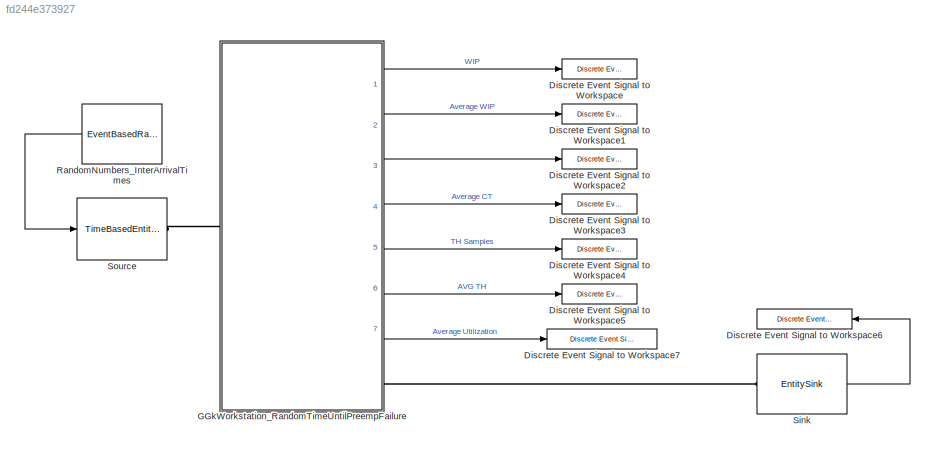
MODEL slx_fd244e373927
KIND model
CONFIG AbsTol = auto
CONFIG FixedStep = auto
CONFIG InitFcn = se_randomizeseeds(gcs, 'Mode', 'All')
CONFIG MaxStep = auto
CONFIG MinStep = auto
CONFIG RelTol = 1e-3
CONFIG SampleTimeConstraint = Unconstrained
CONFIG Solver = ode45
CONFIG SolverMode = Auto
CONFIG SolverName = ode45
CONFIG StartTime = 0.0
CONFIG StopTime = 100000
BLOCK [Reference] Discrete Event Signal to Workspace  REF=simeventslib/SimEvents
Sinks/Discrete Event Signal
to Workspace
  Decimation = 1
  MaxDataPoints = inf
  Ports = [1]
  SaveFormat = Structure With Time
  SourceBlock = simeventslib/SimEvents\nSinks/Discrete Event Signal\nto Workspace
  SourceType = Discrete Event Signal to Workspace
  VariableName = WIP_samples
  isMonitorOnly = off
  isRecordIC = off
BLOCK [Reference] Discrete Event Signal to Workspace1  REF=simeventslib/SimEvents
Sinks/Discrete Event Signal
to Workspace
  Decimation = 1
  MaxDataPoints = inf
  Ports = [1]
  SaveFormat = Structure With Time
  SourceBlock = simeventslib/SimEvents\nSinks/Discrete Event Signal\nto Workspace
  SourceType = Discrete Event Signal to Workspace
  VariableName = WIP_average
  isMonitorOnly = off
  isRecordIC = off
BLOCK [Reference] Discrete Event Signal to Workspace2  REF=simeventslib/SimEvents
Sinks/Discrete Event Signal
to Workspace
  Decimation = 1
  MaxDataPoints = inf
  Ports = [1]
  SaveFormat = Structure With Time
  SourceBlock = simeventslib/SimEvents\nSinks/Discrete Event Signal\nto Workspace
  SourceType = Discrete Event Signal to Workspace
  VariableName = CT_samples
  isMonitorOnly = off
  isRecordIC = off
BLOCK [Reference] Discrete Event Signal to Workspace3  REF=simeventslib/SimEvents
Sinks/Discrete Event Signal
to Workspace
  Decimation = 1
  MaxDataPoints = inf
  Ports = [1]
  SaveFormat = Structure With Time
  SourceBlock = simeventslib/SimEvents\nSinks/Discrete Event Signal\nto Workspace
  SourceType = Discrete Event Signal to Workspace
  VariableName = CT_average
  isMonitorOnly = off
  isRecordIC = off
BLOCK [Reference] Discrete Event Signal to Workspace4  REF=simeventslib/SimEvents
Sinks/Discrete Event Signal
to Workspace
  Decimation = 1
  MaxDataPoints = inf
  Ports = [1]
  SaveFormat = Structure With Time
  SourceBlock = simeventslib/SimEvents\nSinks/Discrete Event Signal\nto Workspace
  SourceType = Discrete Event Signal to Workspace
  VariableName = TH_samples
  isMonitorOnly = off
  isRecordIC = off
BLOCK [Reference] Discrete Event Signal to Workspace5  REF=simeventslib/SimEvents
Sinks/Discrete Event Signal
to Workspace
  Decimation = 1
  MaxDataPoints = inf
  Ports = [1]
  SaveFormat = Structure With Time
  SourceBlock = simeventslib/SimEvents\nSinks/Discrete Event Signal\nto Workspace
  SourceType = Discrete Event Signal to Workspace
  VariableName = TH_average
  isMonitorOnly = off
  isRecordIC = off
BLOCK [Reference] Discrete Event Signal to Workspace6  REF=simeventslib/SimEvents
Sinks/Discrete Event Signal
to Workspace
  Decimation = 1
  MaxDataPoints = inf
  Ports = [1]
  SaveFormat = Structure With Time
  SourceBlock = simeventslib/SimEvents\nSinks/Discrete Event Signal\nto Workspace
  SourceType = Discrete Event Signal to Workspace
  VariableName = nDepartures
  isMonitorOnly = off
  isRecordIC = off
BLOCK [Reference] Discrete Event Signal to Workspace7  REF=simeventslib/SimEvents
Sinks/Discrete Event Signal
to Workspace
  Decimation = 1
  MaxDataPoints = inf
  Ports = [1]
  SaveFormat = Structure With Time
  SourceBlock = simeventslib/SimEvents\nSinks/Discrete Event Signal\nto Workspace
  SourceType = Discrete Event Signal to Workspace
  VariableName = uServers_average
  isMonitorOnly = off
  isRecordIC = off
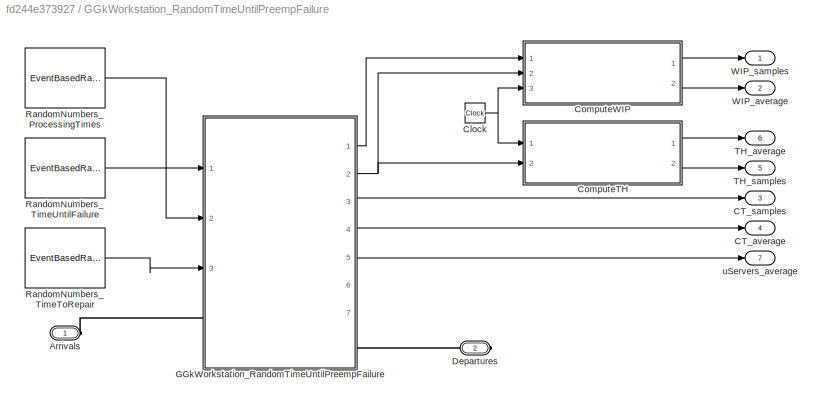
BLOCK [SubSystem] GGkWorkstation_RandomTimeUntilPreempFailure
  CopyFcn = set_param(gcb, 'LinkStatus', 'none');
  InitFcn = se_randomizeseeds(gcs, 'Mode', 'All')
  Ports = [0, 7, 0, 0, 0, 1, 1]
  RequestExecContextInheritance = off
BLOCK [PMIOPort] GGkWorkstation_RandomTimeUntilPreempFailure/Arrivals
  Port = 1
  Side = Left
BLOCK [Outport] GGkWorkstation_RandomTimeUntilPreempFailure/CT_average
  IconDisplay = Port number
  Port = 4
BLOCK [Outport] GGkWorkstation_RandomTimeUntilPreempFailure/CT_samples
  IconDisplay = Port number
  Port = 3
BLOCK [Clock] GGkWorkstation_RandomTimeUntilPreempFailure/Clock
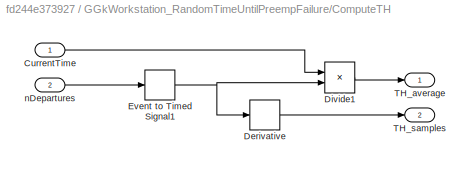
BLOCK [SubSystem] GGkWorkstation_RandomTimeUntilPreempFailure/ComputeTH
  Ports = [2, 2]
  RequestExecContextInheritance = off
BLOCK [Inport] GGkWorkstation_RandomTimeUntilPreempFailure/ComputeTH/CurrentTime
  IconDisplay = Port number
BLOCK [Derivative] GGkWorkstation_RandomTimeUntilPreempFailure/ComputeTH/Derivative
BLOCK [Product] GGkWorkstation_RandomTimeUntilPreempFailure/ComputeTH/Divide1
  InputSameDT = off
  Inputs = /*
  OutDataTypeStr = Inherit: Inherit via internal rule
  Ports = [2, 1]
  RndMeth = Floor
  SaturateOnIntegerOverflow = off
BLOCK [EventToTimedSignal] GGkWorkstation_RandomTimeUntilPreempFailure/ComputeTH/Event to Timed Signal1
  InputPortMap = u0
  OutputPortMap = o0
  Ports = [1, 1]
BLOCK [Outport] GGkWorkstation_RandomTimeUntilPreempFailure/ComputeTH/TH_average
  IconDisplay = Port number
BLOCK [Outport] GGkWorkstation_RandomTimeUntilPreempFailure/ComputeTH/TH_samples
  IconDisplay = Port number
  Port = 2
BLOCK [Inport] GGkWorkstation_RandomTimeUntilPreempFailure/ComputeTH/nDepartures
  IconDisplay = Port number
  Port = 2
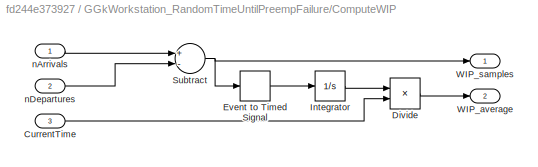
BLOCK [SubSystem] GGkWorkstation_RandomTimeUntilPreempFailure/ComputeWIP
  Ports = [3, 2]
  RequestExecContextInheritance = off
BLOCK [Inport] GGkWorkstation_RandomTimeUntilPreempFailure/ComputeWIP/CurrentTime
  IconDisplay = Port number
  Port = 3
BLOCK [Product] GGkWorkstation_RandomTimeUntilPreempFailure/ComputeWIP/Divide
  InputSameDT = off
  Inputs = */
  OutDataTypeStr = Inherit: Inherit via internal rule
  Ports = [2, 1]
  RndMeth = Floor
  SaturateOnIntegerOverflow = off
BLOCK [EventToTimedSignal] GGkWorkstation_RandomTimeUntilPreempFailure/ComputeWIP/Event to Timed Signal
  InputPortMap = u0
  OutputPortMap = o0
  Ports = [1, 1]
BLOCK [Integrator] GGkWorkstation_RandomTimeUntilPreempFailure/ComputeWIP/Integrator
  Ports = [1, 1]
BLOCK [Sum] GGkWorkstation_RandomTimeUntilPreempFailure/ComputeWIP/Subtract
  InputSameDT = off
  Inputs = +-
  OutDataTypeStr = Inherit: Inherit via internal rule
  Ports = [2, 1]
  SaturateOnIntegerOverflow = off
BLOCK [Outport] GGkWorkstation_RandomTimeUntilPreempFailure/ComputeWIP/WIP_average
  IconDisplay = Port number
  Port = 2
BLOCK [Outport] GGkWorkstation_RandomTimeUntilPreempFailure/ComputeWIP/WIP_samples
  IconDisplay = Port number
BLOCK [Inport] GGkWorkstation_RandomTimeUntilPreempFailure/ComputeWIP/nArrivals
  IconDisplay = Port number
BLOCK [Inport] GGkWorkstation_RandomTimeUntilPreempFailure/ComputeWIP/nDepartures
  IconDisplay = Port number
  Port = 2
BLOCK [PMIOPort] GGkWorkstation_RandomTimeUntilPreempFailure/Departures
  Port = 2
  Side = Right
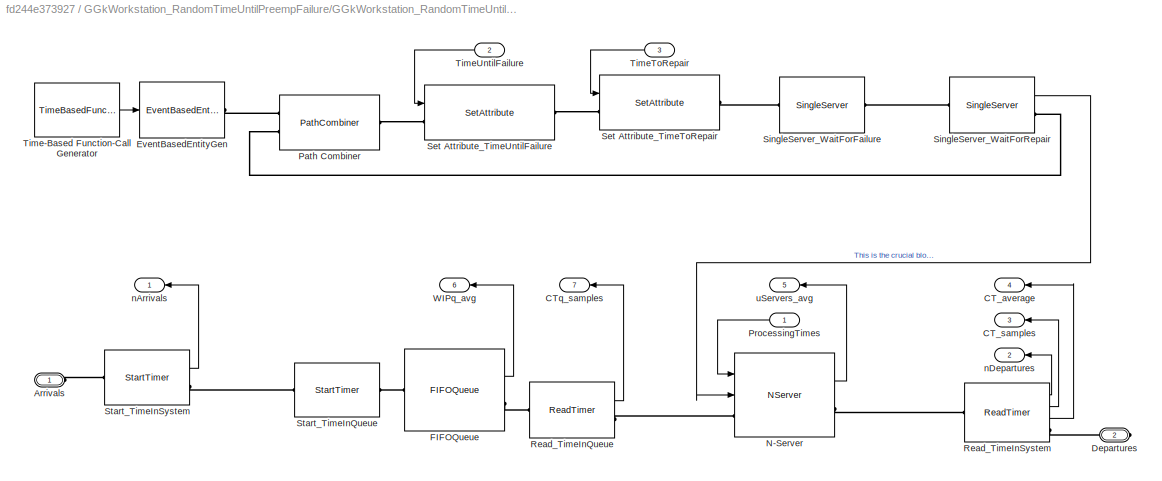
BLOCK [SubSystem] GGkWorkstation_RandomTimeUntilPreempFailure/GGkWorkstation_RandomTimeUntilPreempFailure
  Ports = [3, 7, 0, 0, 0, 1, 1]
  RequestExecContextInheritance = off
BLOCK [PMIOPort] GGkWorkstation_RandomTimeUntilPreempFailure/GGkWorkstation_RandomTimeUntilPreempFailure/Arrivals
  Port = 1
  Side = Left
BLOCK [Outport] GGkWorkstation_RandomTimeUntilPreempFailure/GGkWorkstation_RandomTimeUntilPreempFailure/CT_average
  IconDisplay = Port number
  Port = 4
BLOCK [Outport] GGkWorkstation_RandomTimeUntilPreempFailure/GGkWorkstation_RandomTimeUntilPreempFailure/CT_samples
  IconDisplay = Port number
  Port = 3
BLOCK [Outport] GGkWorkstation_RandomTimeUntilPreempFailure/GGkWorkstation_RandomTimeUntilPreempFailure/CTq_samples
  IconDisplay = Port number
  Port = 7
BLOCK [PMIOPort] GGkWorkstation_RandomTimeUntilPreempFailure/GGkWorkstation_RandomTimeUntilPreempFailure/Departures
  Port = 2
  Side = Right
BLOCK [EventBasedEntityGenerator] GGkWorkstation_RandomTimeUntilPreempFailure/GGkWorkstation_RandomTimeUntilPreempFailure/EventBasedEntityGen
  GenerateEntitiesUpon = Function call from port fcn
  InputPortMap = u0
  Ports = [1, 0, 0, 0, 0, 0, 1]
BLOCK [FIFOQueue] GGkWorkstation_RandomTimeUntilPreempFailure/GGkWorkstation_RandomTimeUntilPreempFailure/FIFOQueue
  Capacity = Inf
  OutputPortMap = o3
  Ports = [0, 1, 0, 0, 0, 1, 1]
  StatAverageQueueLength = on
BLOCK [NServer] GGkWorkstation_RandomTimeUntilPreempFailure/GGkWorkstation_RandomTimeUntilPreempFailure/N-Server
  AllowServiceControl = on
  BlockWhileSignalOn = on
  InputPortMap = u0,u1
  NumberOfServers = NumberOfServers
  OutputPortMap = o5
  Ports = [2, 1, 0, 0, 0, 1, 1]
  ServiceTimeFrom = Signal port t
  StatUtilization = on
BLOCK [PathCombiner] GGkWorkstation_RandomTimeUntilPreempFailure/GGkWorkstation_RandomTimeUntilPreempFailure/Path Combiner
  NumberInputPorts = 2
  Ports = [0, 0, 0, 0, 0, 2, 1]
BLOCK [Inport] GGkWorkstation_RandomTimeUntilPreempFailure/GGkWorkstation_RandomTimeUntilPreempFailure/ProcessingTimes
  IconDisplay = Port number
BLOCK [ReadTimer] GGkWorkstation_RandomTimeUntilPreempFailure/GGkWorkstation_RandomTimeUntilPreempFailure/Read_TimeInQueue
  OutputPortMap = o2
  Ports = [0, 1, 0, 0, 0, 1, 1]
  StatTimeElapsed = on
  TimerTag = TimeInQueue
BLOCK [ReadTimer] GGkWorkstation_RandomTimeUntilPreempFailure/GGkWorkstation_RandomTimeUntilPreempFailure/Read_TimeInSystem
  OutputPortMap = o0,o2,o3
  Ports = [0, 3, 0, 0, 0, 1, 1]
  StatAverageTimeElapsed = on
  StatNumberDeparted = on
  StatTimeElapsed = on
  TimerTag = TimeInSystem
BLOCK [SetAttribute] GGkWorkstation_RandomTimeUntilPreempFailure/GGkWorkstation_RandomTimeUntilPreempFailure/Set Attribute_TimeToRepair
  AttributeFrom = Signal port
  AttributeName = TimeToRepair
  EvaluatedAttributeValue = { []}
  InputPortMap = u0
  Ports = [1, 0, 0, 0, 0, 1, 1]
BLOCK [SetAttribute] GGkWorkstation_RandomTimeUntilPreempFailure/GGkWorkstation_RandomTimeUntilPreempFailure/Set Attribute_TimeUntilFailure
  AttributeFrom = Signal port
  AttributeName = TimeUntilFailure
  EvaluatedAttributeValue = { []}
  InputPortMap = u0
  Ports = [1, 0, 0, 0, 0, 1, 1]
BLOCK [SingleServer] GGkWorkstation_RandomTimeUntilPreempFailure/GGkWorkstation_RandomTimeUntilPreempFailure/SingleServer_WaitForFailure
  AttributeName = TimeUntilFailure
  Ports = [0, 0, 0, 0, 0, 1, 1]
  ServiceTimeFrom = Attribute
BLOCK [SingleServer] GGkWorkstation_RandomTimeUntilPreempFailure/GGkWorkstation_RandomTimeUntilPreempFailure/SingleServer_WaitForRepair
  AttributeName = TimeToRepair
  OutputPortMap = o1
  Ports = [0, 1, 0, 0, 0, 1, 1]
  ServiceTimeFrom = Attribute
  StatNumberInBlock = on
BLOCK [StartTimer] GGkWorkstation_RandomTimeUntilPreempFailure/GGkWorkstation_RandomTimeUntilPreempFailure/Start_TimeInQueue
  Ports = [0, 0, 0, 0, 0, 1, 1]
  TimerStartedOption = Restart
  TimerTag = TimeInQueue
BLOCK [StartTimer] GGkWorkstation_RandomTimeUntilPreempFailure/GGkWorkstation_RandomTimeUntilPreempFailure/Start_TimeInSystem
  OutputPortMap = o0
  Ports = [0, 1, 0, 0, 0, 1, 1]
  StatNumberDeparted = on
  TimerStartedOption = Restart
  TimerTag = TimeInSystem
BLOCK [TimeBasedFunctionCallGenerator] GGkWorkstation_RandomTimeUntilPreempFailure/GGkWorkstation_RandomTimeUntilPreempFailure/Time-Based Function-Call Generator
  EventGenerationMode = Only at simulation start
  OutputPortMap = o0
  Ports = [0, 1]
BLOCK [Inport] GGkWorkstation_RandomTimeUntilPreempFailure/GGkWorkstation_RandomTimeUntilPreempFailure/TimeToRepair
  IconDisplay = Port number
  Port = 3
BLOCK [Inport] GGkWorkstation_RandomTimeUntilPreempFailure/GGkWorkstation_RandomTimeUntilPreempFailure/TimeUntilFailure
  IconDisplay = Port number
  Port = 2
BLOCK [Outport] GGkWorkstation_RandomTimeUntilPreempFailure/GGkWorkstation_RandomTimeUntilPreempFailure/WIPq_avg
  IconDisplay = Port number
  Port = 6
BLOCK [Outport] GGkWorkstation_RandomTimeUntilPreempFailure/GGkWorkstation_RandomTimeUntilPreempFailure/nArrivals
  IconDisplay = Port number
BLOCK [Outport] GGkWorkstation_RandomTimeUntilPreempFailure/GGkWorkstation_RandomTimeUntilPreempFailure/nDepartures
  IconDisplay = Port number
  Port = 2
BLOCK [Outport] GGkWorkstation_RandomTimeUntilPreempFailure/GGkWorkstation_RandomTimeUntilPreempFailure/uServers_avg
  IconDisplay = Port number
  Port = 5
BLOCK [EventBasedRandomNumber] GGkWorkstation_RandomTimeUntilPreempFailure/RandomNumbers_ProcessingTimes
  Distribution = Triangular
  OutputPortMap = o0
  Ports = [0, 1]
  Seed = 32033
  cdfVecCont = 40
  maxBeta = 40
  maxTri = 25
  maxUnid = 40
  maxUnif = 40
  meanExp = 15
  meanNorm = 95
  meanPoiss = 40
  minBeta = 40
  minTri = 5
  minUnid = 40
  minUnif = 40
  modeTri = 15
  numTrialBino = 40
  numValueUnid = 40
  pOneBern = 40
  pSuccessBino = 40
  pSuccessGeo = 40
  probVecDisc = 40
  scaleGam = 40
  scaleLogl = 40
  scaleLogn = 40
  scaleWbl = 40
  shape1Beta = 40
  shape2Beta = 40
  shapeGam = 40
  shapeLogn = 40
  shapeWbl = 40
  stdNorm = eps
  thresholdGam = 40
  thresholdLogl = 40
  thresholdLogn = 40
  thresholdWbl = 40
  valueVecCont = 40
  valueVecDisc = 40
BLOCK [EventBasedRandomNumber] GGkWorkstation_RandomTimeUntilPreempFailure/RandomNumbers_TimeToRepair
  Distribution = Gaussian (normal)
  OutputPortMap = o0
  Ports = [0, 1]
  Seed = 35250
  cdfVecCont = 40
  maxBeta = 40
  maxTri = 40
  maxUnid = 40
  maxUnif = 40
  meanExp = 248
  meanNorm = 40
  meanPoiss = 40
  minBeta = 40
  minTri = 40
  minUnid = 40
  minUnif = 40
  modeTri = 40
  numTrialBino = 40
  numValueUnid = 40
  pOneBern = 40
  pSuccessBino = 40
  pSuccessGeo = 40
  probVecDisc = [0 1]
  scaleGam = 20
  scaleLogl = 40
  scaleLogn = 40
  scaleWbl = 40
  shape1Beta = 40
  shape2Beta = 40
  shapeLogn = 40
  shapeWbl = 40
  stdNorm = eps
  thresholdLogl = 40
  thresholdLogn = 40
  thresholdWbl = 40
  valueVecCont = 40
BLOCK [EventBasedRandomNumber] GGkWorkstation_RandomTimeUntilPreempFailure/RandomNumbers_TimeUntilFailure
  OutputPortMap = o0
  Ports = [0, 1]
  Seed = 38467
  cdfVecCont = 40
  maxBeta = 40
  maxTri = 744
  maxUnid = 40
  maxUnif = 40
  meanExp = 120
  meanNorm = 1000
  meanPoiss = 40
  minBeta = 40
  minTri = 744
  minUnid = 40
  minUnif = 40
  modeTri = 744
  numTrialBino = 40
  numValueUnid = 40
  pOneBern = 40
  pSuccessBino = 40
  pSuccessGeo = 40
  probVecDisc = 40
  scaleGam = 166.6667
  scaleLogl = 40
  scaleLogn = 40
  scaleWbl = 40
  shape1Beta = 40
  shape2Beta = 40
  shapeGam = 0.72
  shapeLogn = 40
  shapeWbl = 40
  stdNorm = 1.4901e-08
  thresholdLogl = 40
  thresholdLogn = 40
  thresholdWbl = 40
  valueVecCont = 40
  valueVecDisc = 40
BLOCK [Outport] GGkWorkstation_RandomTimeUntilPreempFailure/TH_average
  IconDisplay = Port number
  Port = 6
BLOCK [Outport] GGkWorkstation_RandomTimeUntilPreempFailure/TH_samples
  IconDisplay = Port number
  Port = 5
BLOCK [Outport] GGkWorkstation_RandomTimeUntilPreempFailure/WIP_average
  IconDisplay = Port number
  Port = 2
BLOCK [Outport] GGkWorkstation_RandomTimeUntilPreempFailure/WIP_samples
  IconDisplay = Port number
BLOCK [Outport] GGkWorkstation_RandomTimeUntilPreempFailure/uServers_average
  IconDisplay = Port number
  Port = 7
BLOCK [EventBasedRandomNumber] RandomNumbers_InterArrivalTimes
  OutputPortMap = o0
  Ports = [0, 1]
  Seed = 41684
  meanExp = 25
  meanNorm = 100
  scaleGam = 10
  stdNorm = eps
BLOCK [EntitySink] Sink
  OutputPortMap = o0
  Ports = [0, 1, 0, 0, 0, 1]
  StatNumberArrived = on
BLOCK [TimeBasedEntityGenerator] Source
  GenerateEntitiesUpon = Intergeneration time from port t
  InputPortMap = u0
  Ports = [1, 0, 0, 0, 0, 0, 1]
NET GGkWorkstation_RandomTimeUntilPreempFailure/Clock:1 -> GGkWorkstation_RandomTimeUntilPreempFailure/ComputeTH:1, GGkWorkstation_RandomTimeUntilPreempFailure/ComputeWIP:3
LINE GGkWorkstation_RandomTimeUntilPreempFailure/ComputeTH/CurrentTime:1 -> GGkWorkstation_RandomTimeUntilPreempFailure/ComputeTH/Divide1:1
LINE GGkWorkstation_RandomTimeUntilPreempFailure/ComputeTH/Derivative:1 -> GGkWorkstation_RandomTimeUntilPreempFailure/ComputeTH/TH_samples:1
LINE GGkWorkstation_RandomTimeUntilPreempFailure/ComputeTH/Divide1:1 -> GGkWorkstation_RandomTimeUntilPreempFailure/ComputeTH/TH_average:1
NET GGkWorkstation_RandomTimeUntilPreempFailure/ComputeTH/Event to Timed Signal1:1 -> GGkWorkstation_RandomTimeUntilPreempFailure/ComputeTH/Derivative:1, GGkWorkstation_RandomTimeUntilPreempFailure/ComputeTH/Divide1:2
LINE GGkWorkstation_RandomTimeUntilPreempFailure/ComputeTH/nDepartures:1 -> GGkWorkstation_RandomTimeUntilPreempFailure/ComputeTH/Event to Timed Signal1:1
LINE GGkWorkstation_RandomTimeUntilPreempFailure/ComputeTH:1 -> GGkWorkstation_RandomTimeUntilPreempFailure/TH_average:1
LINE GGkWorkstation_RandomTimeUntilPreempFailure/ComputeTH:2 -> GGkWorkstation_RandomTimeUntilPreempFailure/TH_samples:1
LINE GGkWorkstation_RandomTimeUntilPreempFailure/ComputeWIP/CurrentTime:1 -> GGkWorkstation_RandomTimeUntilPreempFailure/ComputeWIP/Divide:2
LINE GGkWorkstation_RandomTimeUntilPreempFailure/ComputeWIP/Divide:1 -> GGkWorkstation_RandomTimeUntilPreempFailure/ComputeWIP/WIP_average:1
LINE GGkWorkstation_RandomTimeUntilPreempFailure/ComputeWIP/Event to Timed Signal:1 -> GGkWorkstation_RandomTimeUntilPreempFailure/ComputeWIP/Integrator:1
LINE GGkWorkstation_RandomTimeUntilPreempFailure/ComputeWIP/Integrator:1 -> GGkWorkstation_RandomTimeUntilPreempFailure/ComputeWIP/Divide:1
NET GGkWorkstation_RandomTimeUntilPreempFailure/ComputeWIP/Subtract:1 -> GGkWorkstation_RandomTimeUntilPreempFailure/ComputeWIP/Event to Timed Signal:1, GGkWorkstation_RandomTimeUntilPreempFailure/ComputeWIP/WIP_samples:1
LINE GGkWorkstation_RandomTimeUntilPreempFailure/ComputeWIP/nArrivals:1 -> GGkWorkstation_RandomTimeUntilPreempFailure/ComputeWIP/Subtract:1
LINE GGkWorkstation_RandomTimeUntilPreempFailure/ComputeWIP/nDepartures:1 -> GGkWorkstation_RandomTimeUntilPreempFailure/ComputeWIP/Subtract:2
LINE GGkWorkstation_RandomTimeUntilPreempFailure/ComputeWIP:1 -> GGkWorkstation_RandomTimeUntilPreempFailure/WIP_samples:1
LINE GGkWorkstation_RandomTimeUntilPreempFailure/ComputeWIP:2 -> GGkWorkstation_RandomTimeUntilPreempFailure/WIP_average:1
LINE GGkWorkstation_RandomTimeUntilPreempFailure/GGkWorkstation_RandomTimeUntilPreempFailure/FIFOQueue:1 -> GGkWorkstation_RandomTimeUntilPreempFailure/GGkWorkstation_RandomTimeUntilPreempFailure/WIPq_avg:1
LINE GGkWorkstation_RandomTimeUntilPreempFailure/GGkWorkstation_RandomTimeUntilPreempFailure/N-Server:1 -> GGkWorkstation_RandomTimeUntilPreempFailure/GGkWorkstation_RandomTimeUntilPreempFailure/uServers_avg:1
LINE GGkWorkstation_RandomTimeUntilPreempFailure/GGkWorkstation_RandomTimeUntilPreempFailure/ProcessingTimes:1 -> GGkWorkstation_RandomTimeUntilPreempFailure/GGkWorkstation_RandomTimeUntilPreempFailure/N-Server:1
LINE GGkWorkstation_RandomTimeUntilPreempFailure/GGkWorkstation_RandomTimeUntilPreempFailure/Read_TimeInQueue:1 -> GGkWorkstation_RandomTimeUntilPreempFailure/GGkWorkstation_RandomTimeUntilPreempFailure/CTq_samples:1
LINE GGkWorkstation_RandomTimeUntilPreempFailure/GGkWorkstation_RandomTimeUntilPreempFailure/Read_TimeInSystem:1 -> GGkWorkstation_RandomTimeUntilPreempFailure/GGkWorkstation_RandomTimeUntilPreempFailure/nDepartures:1
LINE GGkWorkstation_RandomTimeUntilPreempFailure/GGkWorkstation_RandomTimeUntilPreempFailure/Read_TimeInSystem:2 -> GGkWorkstation_RandomTimeUntilPreempFailure/GGkWorkstation_RandomTimeUntilPreempFailure/CT_samples:1
LINE GGkWorkstation_RandomTimeUntilPreempFailure/GGkWorkstation_RandomTimeUntilPreempFailure/Read_TimeInSystem:3 -> GGkWorkstation_RandomTimeUntilPreempFailure/GGkWorkstation_RandomTimeUntilPreempFailure/CT_average:1
LINE GGkWorkstation_RandomTimeUntilPreempFailure/GGkWorkstation_RandomTimeUntilPreempFailure/SingleServer_WaitForRepair:1 -> GGkWorkstation_RandomTimeUntilPreempFailure/GGkWorkstation_RandomTimeUntilPreempFailure/N-Server:2
LINE GGkWorkstation_RandomTimeUntilPreempFailure/GGkWorkstation_RandomTimeUntilPreempFailure/Start_TimeInSystem:1 -> GGkWorkstation_RandomTimeUntilPreempFailure/GGkWorkstation_RandomTimeUntilPreempFailure/nArrivals:1
LINE GGkWorkstation_RandomTimeUntilPreempFailure/GGkWorkstation_RandomTimeUntilPreempFailure/Time-Based Function-Call Generator:1 -> GGkWorkstation_RandomTimeUntilPreempFailure/GGkWorkstation_RandomTimeUntilPreempFailure/EventBasedEntityGen:1
LINE GGkWorkstation_RandomTimeUntilPreempFailure/GGkWorkstation_RandomTimeUntilPreempFailure/TimeToRepair:1 -> GGkWorkstation_RandomTimeUntilPreempFailure/GGkWorkstation_RandomTimeUntilPreempFailure/Set Attribute_TimeToRepair:1
LINE GGkWorkstation_RandomTimeUntilPreempFailure/GGkWorkstation_RandomTimeUntilPreempFailure/TimeUntilFailure:1 -> GGkWorkstation_RandomTimeUntilPreempFailure/GGkWorkstation_RandomTimeUntilPreempFailure/Set Attribute_TimeUntilFailure:1
LINE GGkWorkstation_RandomTimeUntilPreempFailure/GGkWorkstation_RandomTimeUntilPreempFailure:1 -> GGkWorkstation_RandomTimeUntilPreempFailure/ComputeWIP:1
NET GGkWorkstation_RandomTimeUntilPreempFailure/GGkWorkstation_RandomTimeUntilPreempFailure:2 -> GGkWorkstation_RandomTimeUntilPreempFailure/ComputeTH:2, GGkWorkstation_RandomTimeUntilPreempFailure/ComputeWIP:2
LINE GGkWorkstation_RandomTimeUntilPreempFailure/GGkWorkstation_RandomTimeUntilPreempFailure:3 -> GGkWorkstation_RandomTimeUntilPreempFailure/CT_samples:1
LINE GGkWorkstation_RandomTimeUntilPreempFailure/GGkWorkstation_RandomTimeUntilPreempFailure:4 -> GGkWorkstation_RandomTimeUntilPreempFailure/CT_average:1
LINE GGkWorkstation_RandomTimeUntilPreempFailure/GGkWorkstation_RandomTimeUntilPreempFailure:5 -> GGkWorkstation_RandomTimeUntilPreempFailure/uServers_average:1
LINE GGkWorkstation_RandomTimeUntilPreempFailure/RandomNumbers_ProcessingTimes:1 -> GGkWorkstation_RandomTimeUntilPreempFailure/GGkWorkstation_RandomTimeUntilPreempFailure:1
LINE GGkWorkstation_RandomTimeUntilPreempFailure/RandomNumbers_TimeToRepair:1 -> GGkWorkstation_RandomTimeUntilPreempFailure/GGkWorkstation_RandomTimeUntilPreempFailure:3
LINE GGkWorkstation_RandomTimeUntilPreempFailure/RandomNumbers_TimeUntilFailure:1 -> GGkWorkstation_RandomTimeUntilPreempFailure/GGkWorkstation_RandomTimeUntilPreempFailure:2
LINE GGkWorkstation_RandomTimeUntilPreempFailure:1 -> Discrete Event Signal to Workspace:1
LINE GGkWorkstation_RandomTimeUntilPreempFailure:2 -> Discrete Event Signal to Workspace1:1
LINE GGkWorkstation_RandomTimeUntilPreempFailure:3 -> Discrete Event Signal to Workspace2:1
LINE GGkWorkstation_RandomTimeUntilPreempFailure:4 -> Discrete Event Signal to Workspace3:1
LINE GGkWorkstation_RandomTimeUntilPreempFailure:5 -> Discrete Event Signal to Workspace4:1
LINE GGkWorkstation_RandomTimeUntilPreempFailure:6 -> Discrete Event Signal to Workspace5:1
LINE GGkWorkstation_RandomTimeUntilPreempFailure:7 -> Discrete Event Signal to Workspace7:1
LINE RandomNumbers_InterArrivalTimes:1 -> Source:1
LINE Sink:1 -> Discrete Event Signal to Workspace6:1
PLINE GGkWorkstation_RandomTimeUntilPreempFailure/Arrivals:RConn1 -- GGkWorkstation_RandomTimeUntilPreempFailure/GGkWorkstation_RandomTimeUntilPreempFailure:LConn1
PLINE GGkWorkstation_RandomTimeUntilPreempFailure/Departures:RConn1 -- GGkWorkstation_RandomTimeUntilPreempFailure/GGkWorkstation_RandomTimeUntilPreempFailure:RConn1
PLINE GGkWorkstation_RandomTimeUntilPreempFailure/GGkWorkstation_RandomTimeUntilPreempFailure/Arrivals:RConn1 -- GGkWorkstation_RandomTimeUntilPreempFailure/GGkWorkstation_RandomTimeUntilPreempFailure/Start_TimeInSystem:LConn1
PLINE GGkWorkstation_RandomTimeUntilPreempFailure/GGkWorkstation_RandomTimeUntilPreempFailure/Departures:RConn1 -- GGkWorkstation_RandomTimeUntilPreempFailure/GGkWorkstation_RandomTimeUntilPreempFailure/Read_TimeInSystem:RConn1
PLINE GGkWorkstation_RandomTimeUntilPreempFailure/GGkWorkstation_RandomTimeUntilPreempFailure/EventBasedEntityGen:RConn1 -- GGkWorkstation_RandomTimeUntilPreempFailure/GGkWorkstation_RandomTimeUntilPreempFailure/Path Combiner:LConn1
PLINE GGkWorkstation_RandomTimeUntilPreempFailure/GGkWorkstation_RandomTimeUntilPreempFailure/FIFOQueue:LConn1 -- GGkWorkstation_RandomTimeUntilPreempFailure/GGkWorkstation_RandomTimeUntilPreempFailure/Start_TimeInQueue:RConn1
PLINE GGkWorkstation_RandomTimeUntilPreempFailure/GGkWorkstation_RandomTimeUntilPreempFailure/FIFOQueue:RConn1 -- GGkWorkstation_RandomTimeUntilPreempFailure/GGkWorkstation_RandomTimeUntilPreempFailure/Read_TimeInQueue:LConn1
PLINE GGkWorkstation_RandomTimeUntilPreempFailure/GGkWorkstation_RandomTimeUntilPreempFailure/N-Server:LConn1 -- GGkWorkstation_RandomTimeUntilPreempFailure/GGkWorkstation_RandomTimeUntilPreempFailure/Read_TimeInQueue:RConn1
PLINE GGkWorkstation_RandomTimeUntilPreempFailure/GGkWorkstation_RandomTimeUntilPreempFailure/N-Server:RConn1 -- GGkWorkstation_RandomTimeUntilPreempFailure/GGkWorkstation_RandomTimeUntilPreempFailure/Read_TimeInSystem:LConn1
PLINE GGkWorkstation_RandomTimeUntilPreempFailure/GGkWorkstation_RandomTimeUntilPreempFailure/Path Combiner:LConn2 -- GGkWorkstation_RandomTimeUntilPreempFailure/GGkWorkstation_RandomTimeUntilPreempFailure/SingleServer_WaitForRepair:RConn1
PLINE GGkWorkstation_RandomTimeUntilPreempFailure/GGkWorkstation_RandomTimeUntilPreempFailure/Path Combiner:RConn1 -- GGkWorkstation_RandomTimeUntilPreempFailure/GGkWorkstation_RandomTimeUntilPreempFailure/Set Attribute_TimeUntilFailure:LConn1
PLINE GGkWorkstation_RandomTimeUntilPreempFailure/GGkWorkstation_RandomTimeUntilPreempFailure/Set Attribute_TimeToRepair:LConn1 -- GGkWorkstation_RandomTimeUntilPreempFailure/GGkWorkstation_RandomTimeUntilPreempFailure/Set Attribute_TimeUntilFailure:RConn1
PLINE GGkWorkstation_RandomTimeUntilPreempFailure/GGkWorkstation_RandomTimeUntilPreempFailure/Set Attribute_TimeToRepair:RConn1 -- GGkWorkstation_RandomTimeUntilPreempFailure/GGkWorkstation_RandomTimeUntilPreempFailure/SingleServer_WaitForFailure:LConn1
PLINE GGkWorkstation_RandomTimeUntilPreempFailure/GGkWorkstation_RandomTimeUntilPreempFailure/SingleServer_WaitForFailure:RConn1 -- GGkWorkstation_RandomTimeUntilPreempFailure/GGkWorkstation_RandomTimeUntilPreempFailure/SingleServer_WaitForRepair:LConn1
PLINE GGkWorkstation_RandomTimeUntilPreempFailure/GGkWorkstation_RandomTimeUntilPreempFailure/Start_TimeInQueue:LConn1 -- GGkWorkstation_RandomTimeUntilPreempFailure/GGkWorkstation_RandomTimeUntilPreempFailure/Start_TimeInSystem:RConn1
PLINE GGkWorkstation_RandomTimeUntilPreempFailure:LConn1 -- Source:RConn1
PLINE GGkWorkstation_RandomTimeUntilPreempFailure:RConn1 -- Sink:LConn1
note: NET lines group one-source signal fan-out (src -> all destinations, sorted); 1:1 wires keep LINE
